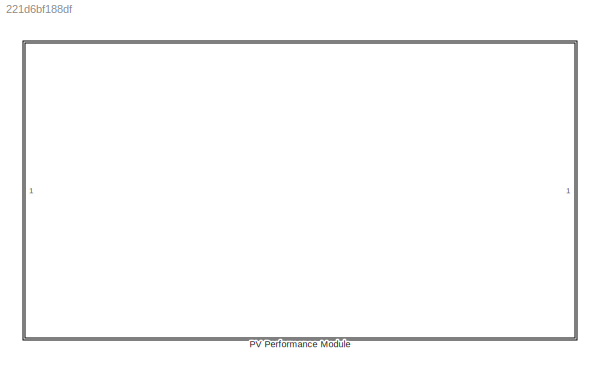
MODEL slx_221d6bf188df
KIND library
CONFIG AbsTol = auto
CONFIG EnableMultiTasking = off
CONFIG FixedStep = auto
CONFIG MaxStep = auto
CONFIG MinStep = auto
CONFIG RelTol = 1e-3
CONFIG SampleTimeConstraint = Unconstrained
CONFIG SolverName = VariableStepAuto
CONFIG StartTime = 0.0
CONFIG StopTime = 10.0
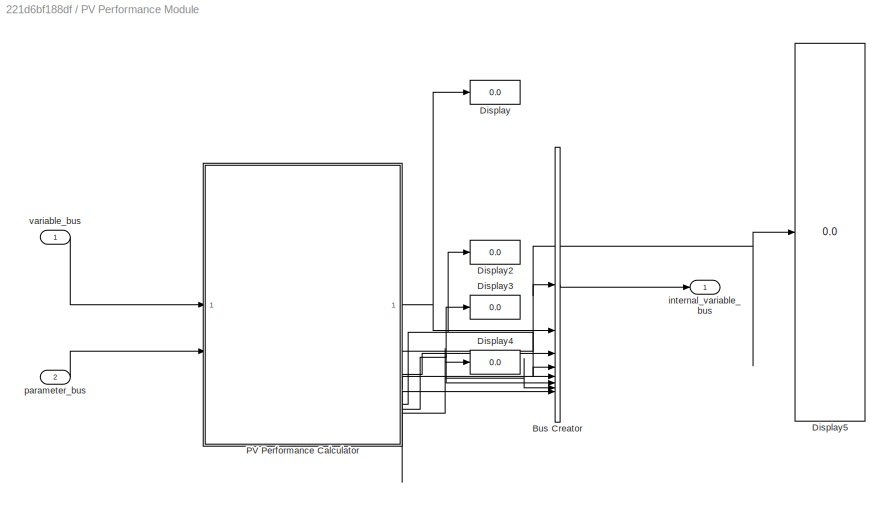
BLOCK [SubSystem] PV Performance Module
BLOCK [BusCreator] PV Performance Module/Bus Creator
  DisplayOption = bar
  InheritFromInputs = on
  Inputs = 8
BLOCK [Display] PV Performance Module/Display
  Decimation = 1
BLOCK [Display] PV Performance Module/Display2
  Decimation = 1
BLOCK [Display] PV Performance Module/Display3
  Decimation = 1
BLOCK [Display] PV Performance Module/Display4
  Decimation = 1
BLOCK [Display] PV Performance Module/Display5
  Decimation = 1
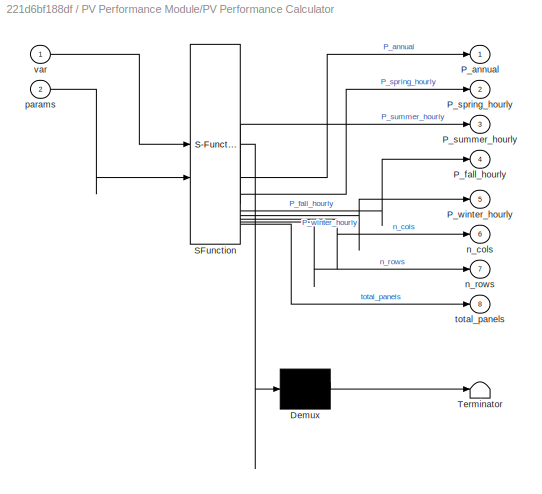
BLOCK [SubSystem] PV Performance Module/PV Performance Calculator
  ErrorFcn = Stateflow.Translate.translate
  PermitHierarchicalResolution = ExplicitOnly
  SFBlockType = MATLAB Function
  TreatAsAtomicUnit = on
BLOCK [Demux] PV Performance Module/PV Performance Calculator/ Demux 
  Outputs = 1
BLOCK [S-Function] PV Performance Module/PV Performance Calculator/ SFunction 
  EnableBusSupport = off
  FunctionName = sf_sfun
  PortCounts = [2 9]
  SFcnIsStateOwnerBlock = off
  SFunctionDeploymentMode = off
  Tag = Stateflow S-Function 5
BLOCK [Terminator] PV Performance Module/PV Performance Calculator/ Terminator 
BLOCK [Outport] PV Performance Module/PV Performance Calculator/P_annual
BLOCK [Outport] PV Performance Module/PV Performance Calculator/P_fall_hourly
  Port = 4
BLOCK [Outport] PV Performance Module/PV Performance Calculator/P_spring_hourly
  Port = 2
BLOCK [Outport] PV Performance Module/PV Performance Calculator/P_summer_hourly
  Port = 3
BLOCK [Outport] PV Performance Module/PV Performance Calculator/P_winter_hourly
  Port = 5
BLOCK [Outport] PV Performance Module/PV Performance Calculator/n_cols
  Port = 6
BLOCK [Outport] PV Performance Module/PV Performance Calculator/n_rows
  Port = 7
BLOCK [Inport] PV Performance Module/PV Performance Calculator/params
  Port = 2
BLOCK [Outport] PV Performance Module/PV Performance Calculator/total_panels
  Port = 8
BLOCK [Inport] PV Performance Module/PV Performance Calculator/var
BLOCK [Outport] PV Performance Module/internal_variable_bus
BLOCK [Inport] PV Performance Module/parameter_bus
  Port = 2
BLOCK [Inport] PV Performance Module/variable_bus
LINE PV Performance Module/Bus Creator:1 -> PV Performance Module/internal_variable_bus:1
NET PV Performance Module/PV Performance Calculator:1 -> PV Performance Module/Bus Creator:2, PV Performance Module/Display:1
NET PV Performance Module/PV Performance Calculator:2 -> PV Performance Module/Bus Creator:1, PV Performance Module/Display5:1
LINE PV Performance Module/PV Performance Calculator:3 -> PV Performance Module/Bus Creator:3
LINE PV Performance Module/PV Performance Calculator:4 -> PV Performance Module/Bus Creator:4
LINE PV Performance Module/PV Performance Calculator:5 -> PV Performance Module/Bus Creator:8
NET PV Performance Module/PV Performance Calculator:6 -> PV Performance Module/Bus Creator:5, PV Performance Module/Display2:1
NET PV Performance Module/PV Performance Calculator:7 -> PV Performance Module/Bus Creator:6, PV Performance Module/Display3:1
NET PV Performance Module/PV Performance Calculator:8 -> PV Performance Module/Bus Creator:7, PV Performance Module/Display4:1
LINE PV Performance Module/parameter_bus:1 -> PV Performance Module/PV Performance Calculator:2
LINE PV Performance Module/variable_bus:1 -> PV Performance Module/PV Performance Calculator:1
note: NET lines group one-source signal fan-out (src -> all destinations, sorted); 1:1 wires keep LINE
CHART PV Performance Module/PV Performance Calculator states=1 transitions=1
  STATE_LABEL 'eML_blk_kernel()'
  STATE_LABEL 'SCRIPT:\nfunction [P_annual, P_spring_hourly, P_summer_hourly, P_fall_hourly, P_winter_hourly, n_cols, n_rows, total_panels] = pv_model1(var, params)\n\n    %PV model calculating incidence angle, total radiation, and estimated power\n    %output\n        % DNI ; %direct normal irradiance\n        % DHI ; % diffuse horizontal irradiance\n        % beta_s ; %sun altitude angle (angle of sun above the local...<+2812ch>'
CHART  states=0 transitions=0
